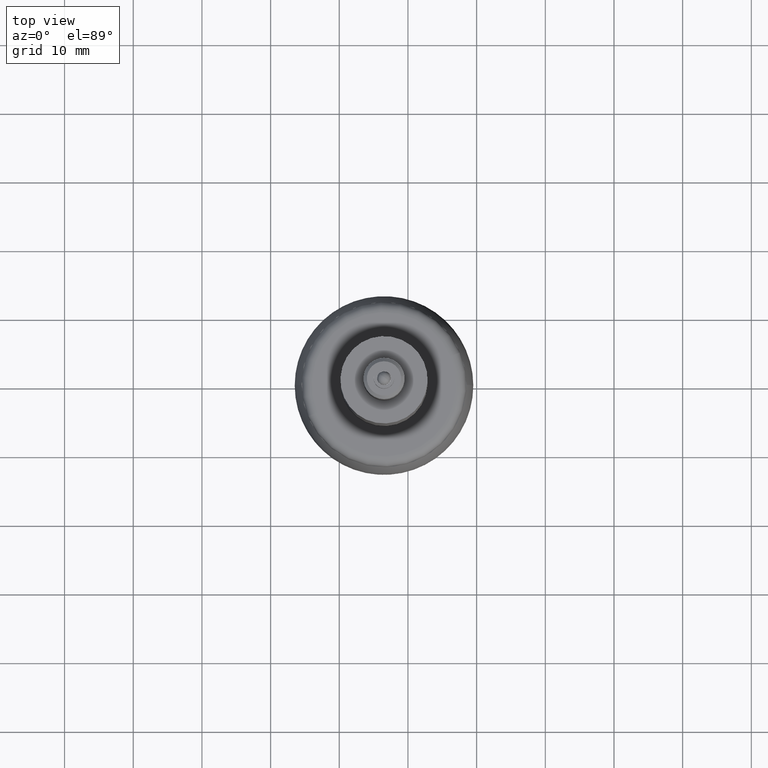
[diagram: clean part render]
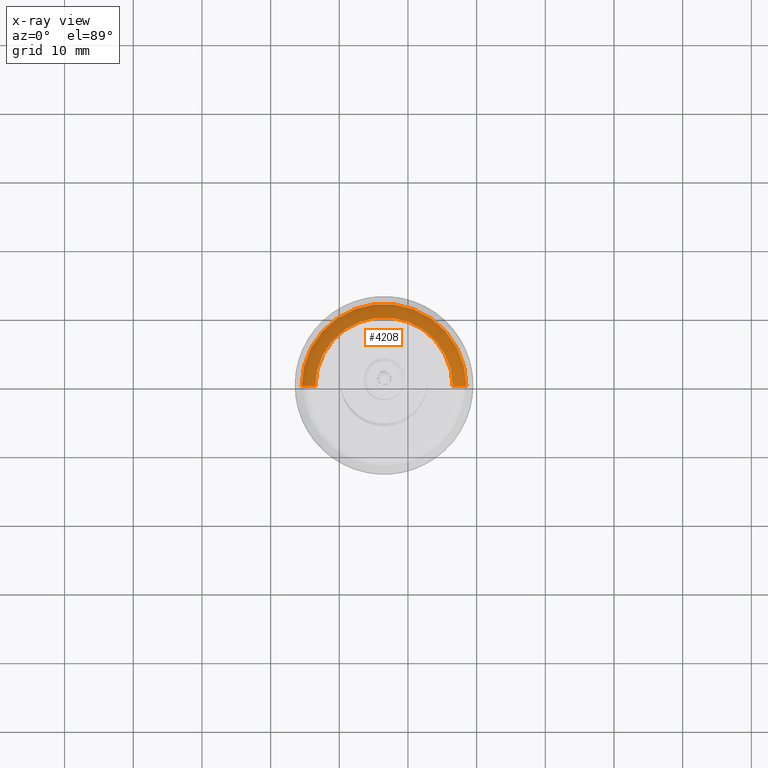
[diagram: x-ray — body ghosted, one internal face saturated and labeled with its STEP entity id]
A machine part, top view, then the same camera in x-ray: the body is ghosted and one INTERNAL B-rep face — a face not visible from any outside direction — is saturated and labeled: STEP entity #4208.
In plain terms, the highlighted conical surface has half-angle 45 deg.
Its self-contained STEP definition (entity closure, byte-faithful):
#3987 = EDGE_LOOP ( 'NONE', ( #4333, #4314, #4374, #4367 ) ) ;
#4208 = ADVANCED_FACE ( 'NONE', ( #17566 ), #17604, .F. ) ;
#4279 = VERTEX_POINT ( 'NONE', #17876 ) ;
#4284 = VERTEX_POINT ( 'NONE', #17908 ) ;
#4287 = EDGE_CURVE ( 'NONE', #4288, #4279, #17902, .T. ) ;
#4288 = VERTEX_POINT ( 'NONE', #17897 ) ;
#4291 = EDGE_CURVE ( 'NONE', #4284, #4279, #17896, .T. ) ;
#4293 = VERTEX_POINT ( 'NONE', #17887 ) ;
#4296 = EDGE_CURVE ( 'NONE', #4293, #4288, #17885, .T. ) ;
#4314 = ORIENTED_EDGE ( 'NONE', *, *, #4382, .F. ) ;
#4333 = ORIENTED_EDGE ( 'NONE', *, *, #4291, .F. ) ;
#4367 = ORIENTED_EDGE ( 'NONE', *, *, #4287, .T. ) ;
#4374 = ORIENTED_EDGE ( 'NONE', *, *, #4296, .T. ) ;
#4382 = EDGE_CURVE ( 'NONE', #4293, #4284, #18232, .T. ) ;
#17566 = FACE_OUTER_BOUND ( 'NONE', #3987, .T. ) ;
#17601 = DIRECTION ( 'NONE',  ( -1.000000000000000000, -4.291633599421778200E-016, 0.0000000000000000000 ) ) ;
#17602 = DIRECTION ( 'NONE',  ( -1.224606353822377000E-016, -2.465190328815659200E-032, -1.000000000000000000 ) ) ;
#17603 = AXIS2_PLACEMENT_3D ( 'NONE', #17606, #17602, #17601 ) ;
#17604 = CONICAL_SURFACE ( 'NONE', #17603, 0.4724409448818908700, 0.7853981633974435100 ) ;
#17606 = CARTESIAN_POINT ( 'NONE',  ( -0.1372700539044543200, -0.006681459373031536900, -1.442563819777304500 ) ) ;
#17876 = CARTESIAN_POINT ( 'NONE',  ( 0.3351708909774366300, -0.006681459373031275800, -1.442563819777304500 ) ) ;
#17882 = DIRECTION ( 'NONE',  ( -0.7071067811865445800, -3.033309885843945900E-016, -0.7071067811865504600 ) ) ;
#17883 = VECTOR ( 'NONE', #17882, 39.37007874015748100 ) ;
#17884 = CARTESIAN_POINT ( 'NONE',  ( -0.6097109987863451600, -0.006681459373031739000, -1.442563819777304500 ) ) ;
#17885 = LINE ( 'NONE', #17884, #17883 ) ;
#17887 = CARTESIAN_POINT ( 'NONE',  ( -0.5309708413060312300, -0.006681459373035529400, -1.363823662296979700 ) ) ;
#17893 = DIRECTION ( 'NONE',  ( 0.7071067811865445800, 3.899237342915879700E-016, -0.7071067811865503500 ) ) ;
#17894 = VECTOR ( 'NONE', #17893, 39.37007874015748900 ) ;
#17895 = CARTESIAN_POINT ( 'NONE',  ( 0.3351708909774365800, -0.006681459373031275800, -1.442563819777304500 ) ) ;
#17896 = LINE ( 'NONE', #17895, #17894 ) ;
#17897 = CARTESIAN_POINT ( 'NONE',  ( -0.6097109987863451600, -0.006681459373031739000, -1.442563819777304500 ) ) ;
#17898 = DIRECTION ( 'NONE',  ( -1.000000000000000000, -4.291633599421778200E-016, 0.0000000000000000000 ) ) ;
#17899 = DIRECTION ( 'NONE',  ( -1.224606353822377000E-016, -2.465190328815659200E-032, -1.000000000000000000 ) ) ;
#17900 = CARTESIAN_POINT ( 'NONE',  ( -0.1372700539044543200, -0.006681459373031536900, -1.442563819777304500 ) ) ;
#17901 = AXIS2_PLACEMENT_3D ( 'NONE', #17900, #17899, #17898 ) ;
#17902 = CIRCLE ( 'NONE', #17901, 0.4724409448818908700 ) ;
#17908 = CARTESIAN_POINT ( 'NONE',  ( 0.2564307334971194800, -0.006681459373031297500, -1.363823662296979700 ) ) ;
#18229 = DIRECTION ( 'NONE',  ( -1.000000000000000000, -4.282598581317731200E-016, 0.0000000000000000000 ) ) ;
#18230 = DIRECTION ( 'NONE',  ( -1.224606353822377000E-016, -2.465190328815659200E-032, -1.000000000000000000 ) ) ;
#18231 = AXIS2_PLACEMENT_3D ( 'NONE', #18237, #18230, #18229 ) ;
#18232 = CIRCLE ( 'NONE', #18231, 0.3937007874015758200 ) ;
#18237 = CARTESIAN_POINT ( 'NONE',  ( -0.1372700539044554000, -0.006681459373035361100, -1.363823662296979700 ) ) ;